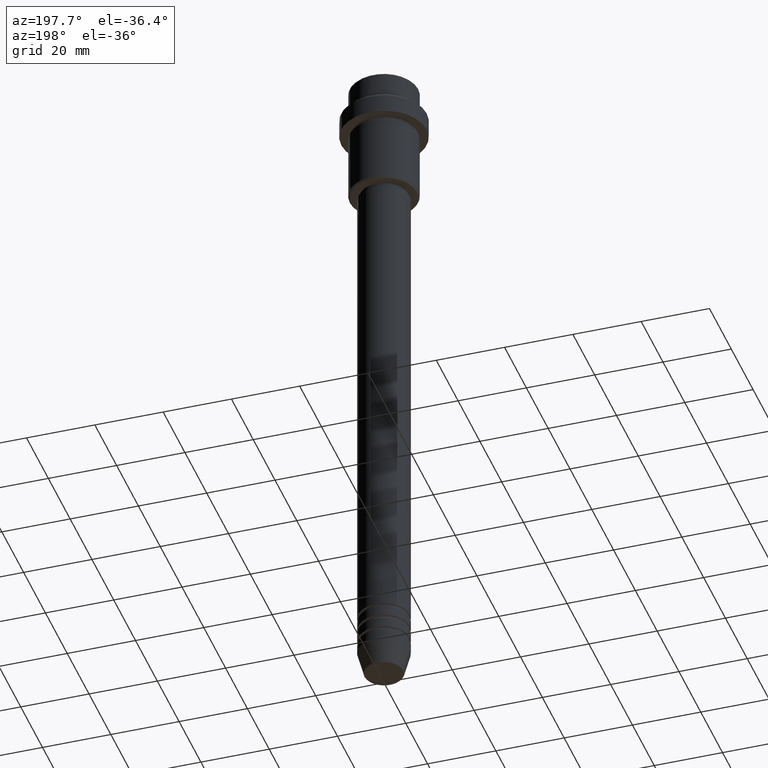
[diagram: clean part render]
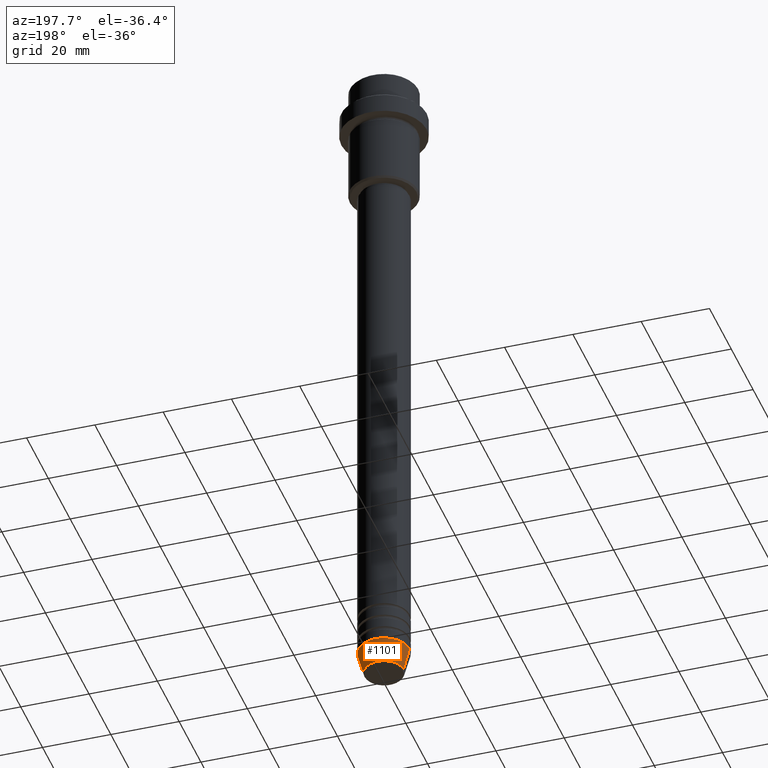
[diagram: same view with one face highlighted and labeled with its STEP entity id]
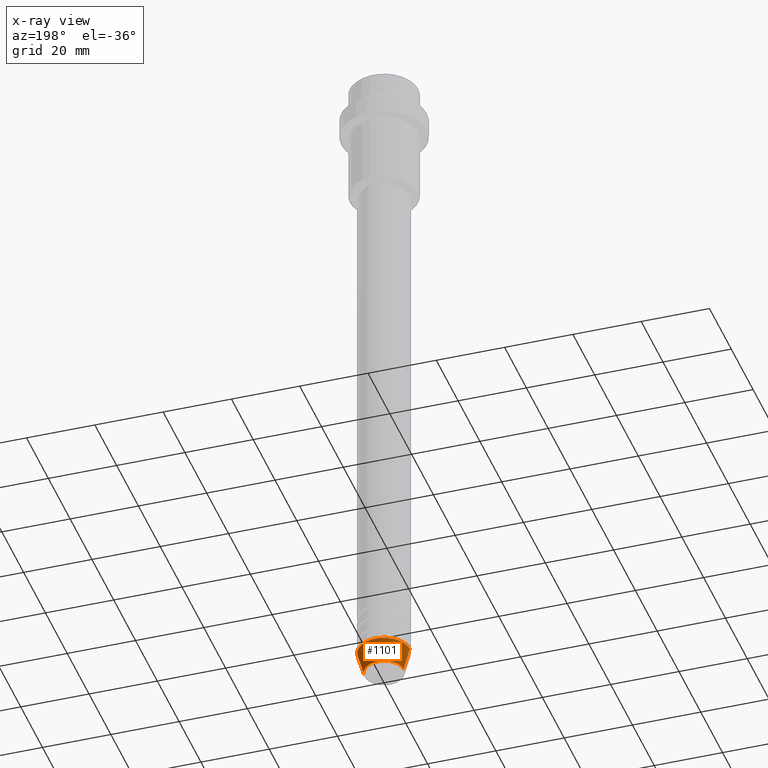
[diagram: x-ray of the same camera — body ghosted, the highlighted face saturated]
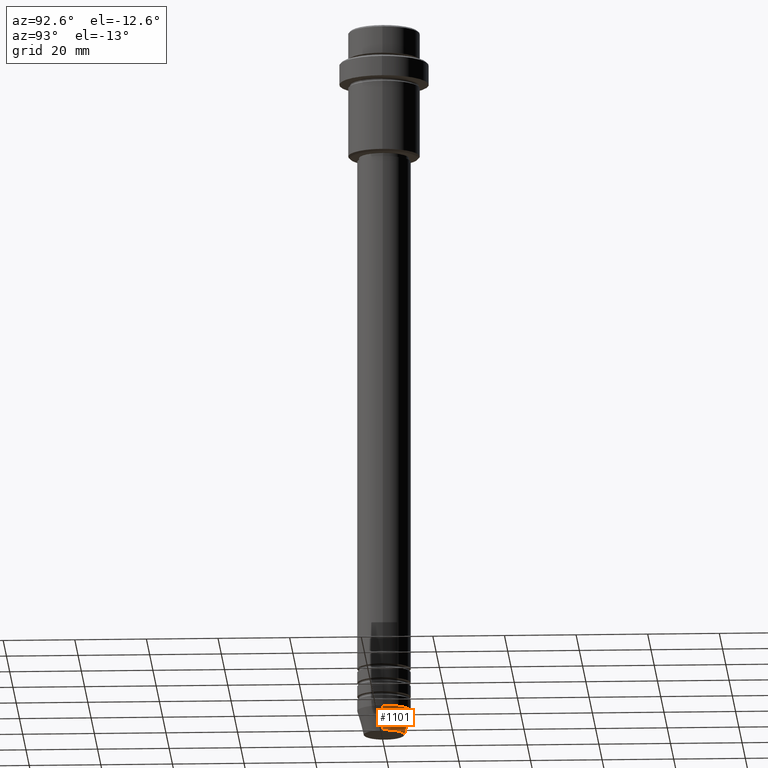
[diagram: same view with one face highlighted and labeled with its STEP entity id]
A machine part, auxiliary view. The second image highlights one B-rep face of the part: STEP entity #1101.
The next image is the same camera in x-ray: the body ghosted, the highlighted face saturated — about 0% of this face is hidden behind the body in this view.
A second angle (auxiliary view) of the same face is appended — the face is thin or edge-on in the first view.
In plain terms, the highlighted conical surface has half-angle 15 deg.
Its self-contained STEP definition (entity closure, byte-faithful):
#27 = LINE ( 'NONE', #571, #445 ) ;
#63 = VERTEX_POINT ( 'NONE', #608 ) ;
#81 = EDGE_LOOP ( 'NONE', ( #374, #1131, #1152, #686 ) ) ;
#190 = LINE ( 'NONE', #1395, #950 ) ;
#278 = DIRECTION ( 'NONE',  ( -0.000000000000000000, -0.000000000000000000, 1.000000000000000000 ) ) ;
#313 = DIRECTION ( 'NONE',  ( -0.000000000000000000, -0.000000000000000000, 1.000000000000000000 ) ) ;
#343 = EDGE_CURVE ( 'NONE', #63, #1148, #922, .T. ) ;
#359 = CARTESIAN_POINT ( 'NONE',  ( 0.000000000000000000, 0.000000000000000000, -194.0000000000000000 ) ) ;
#374 = ORIENTED_EDGE ( 'NONE', *, *, #937, .T. ) ;
#405 = CARTESIAN_POINT ( 'NONE',  ( 5.723655072137191269, 0.000000000000000000, -200.6294095225512706 ) ) ;
#416 = DIRECTION ( 'NONE',  ( 1.000000000000000000, 0.000000000000000000, 0.000000000000000000 ) ) ;
#445 = VECTOR ( 'NONE', #1011, 1000.000000000000000 ) ;
#562 = DIRECTION ( 'NONE',  ( 1.000000000000000000, 0.000000000000000000, 0.000000000000000000 ) ) ;
#571 = CARTESIAN_POINT ( 'NONE',  ( -7.500000000000000000, 9.184850993605147944E-16, -194.0000000000000000 ) ) ;
#608 = CARTESIAN_POINT ( 'NONE',  ( 7.500000000000000000, 0.000000000000000000, -194.0000000000000000 ) ) ;
#626 = DIRECTION ( 'NONE',  ( 0.2588190451025213501, 0.000000000000000000, 0.9659258262890680902 ) ) ;
#675 = CIRCLE ( 'NONE', #926, 5.723655072137191269 ) ;
#686 = ORIENTED_EDGE ( 'NONE', *, *, #1189, .F. ) ;
#716 = DIRECTION ( 'NONE',  ( 1.000000000000000000, 0.000000000000000000, 0.000000000000000000 ) ) ;
#778 = EDGE_CURVE ( 'NONE', #1064, #1148, #27, .T. ) ;
#813 = AXIS2_PLACEMENT_3D ( 'NONE', #359, #888, #562 ) ;
#871 = CARTESIAN_POINT ( 'NONE',  ( -7.500000000000000000, 9.184850993605147944E-16, -194.0000000000000000 ) ) ;
#888 = DIRECTION ( 'NONE',  ( -0.000000000000000000, -0.000000000000000000, 1.000000000000000000 ) ) ;
#922 = CIRCLE ( 'NONE', #813, 7.500000000000000000 ) ;
#926 = AXIS2_PLACEMENT_3D ( 'NONE', #1162, #278, #716 ) ;
#937 = EDGE_CURVE ( 'NONE', #1126, #1064, #675, .T. ) ;
#950 = VECTOR ( 'NONE', #626, 1000.000000000000000 ) ;
#1011 = DIRECTION ( 'NONE',  ( -0.2588190451025213501, 3.169619151431772337E-17, 0.9659258262890680902 ) ) ;
#1064 = VERTEX_POINT ( 'NONE', #1176 ) ;
#1072 = AXIS2_PLACEMENT_3D ( 'NONE', #1297, #313, #416 ) ;
#1092 = CONICAL_SURFACE ( 'NONE', #1072, 7.500000000000000000, 0.2617993877991500740 ) ;
#1101 = ADVANCED_FACE ( 'NONE', ( #1387 ), #1092, .T. ) ;
#1126 = VERTEX_POINT ( 'NONE', #405 ) ;
#1131 = ORIENTED_EDGE ( 'NONE', *, *, #778, .T. ) ;
#1148 = VERTEX_POINT ( 'NONE', #871 ) ;
#1152 = ORIENTED_EDGE ( 'NONE', *, *, #343, .F. ) ;
#1162 = CARTESIAN_POINT ( 'NONE',  ( 0.000000000000000000, 0.000000000000000000, -200.6294095225512706 ) ) ;
#1176 = CARTESIAN_POINT ( 'NONE',  ( -5.723655072137191269, 8.097153428560735915E-16, -200.6294095225512706 ) ) ;
#1189 = EDGE_CURVE ( 'NONE', #1126, #63, #190, .T. ) ;
#1297 = CARTESIAN_POINT ( 'NONE',  ( 0.000000000000000000, 0.000000000000000000, -194.0000000000000000 ) ) ;
#1387 = FACE_OUTER_BOUND ( 'NONE', #81, .T. ) ;
#1395 = CARTESIAN_POINT ( 'NONE',  ( 7.500000000000000000, 0.000000000000000000, -194.0000000000000000 ) ) ;